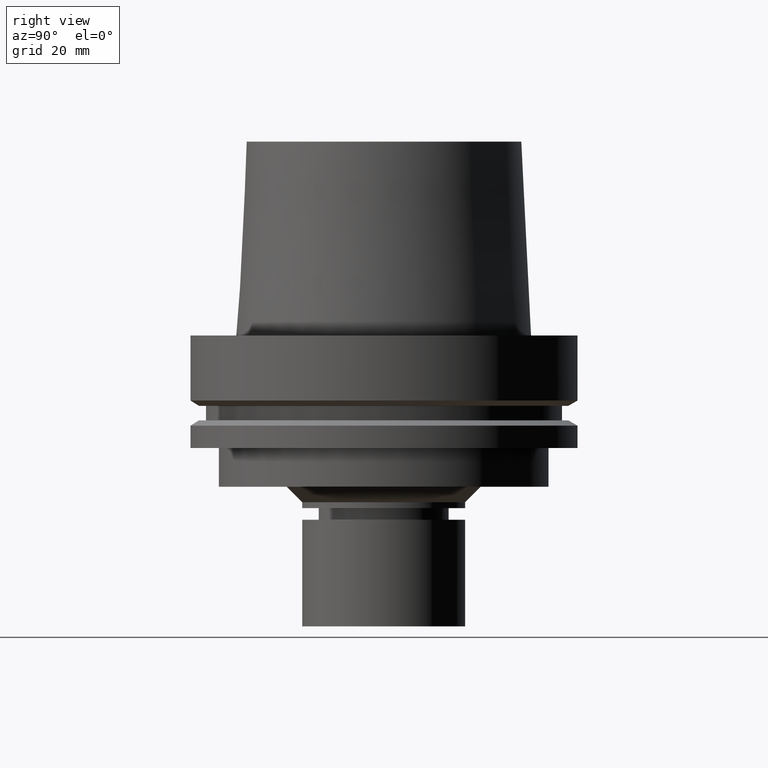
[diagram: clean part render]
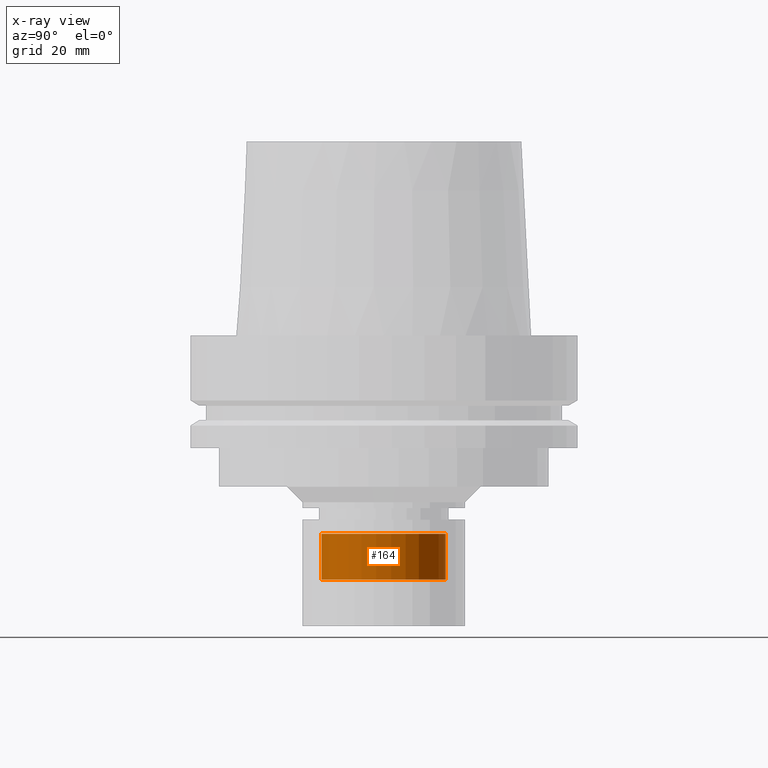
[diagram: x-ray — body ghosted, one internal face saturated and labeled with its STEP entity id]
A machine part, right view, then the same camera in x-ray: the body is ghosted and one INTERNAL B-rep face — a face not visible from any outside direction — is saturated and labeled: STEP entity #164.
In plain terms, the highlighted cylindrical surface (bore or boss wall) has radius 16 mm, axis along (0, 0, -1).
Its self-contained STEP definition (entity closure, byte-faithful):
#104=EDGE_CURVE('Unnamed[1]',#257,#257,#258,.T.);
#151=EDGE_CURVE('Unnamed[1]',#328,#328,#329,.T.);
#164=ADVANCED_FACE('Unnamed[1]',(#348,#349),#350,.T.);
#257=VERTEX_POINT('',#467);
#258=CIRCLE('',#468,16.0);
#328=VERTEX_POINT('',#555);
#329=CIRCLE('',#556,16.0);
#348=FACE_BOUND('',#580,.T.);
#349=FACE_BOUND('',#581,.T.);
#350=CYLINDRICAL_SURFACE('',#582,16.0);
#467=CARTESIAN_POINT('',(3.85119235297769E-015,16.0,-62.8947441116744));
#468=AXIS2_PLACEMENT_3D('',#693,#694,#695);
#555=CARTESIAN_POINT('',(3.13088777704814E-015,16.0,-51.131277674967));
#556=AXIS2_PLACEMENT_3D('',#772,#773,#774);
#580=EDGE_LOOP('',(#794));
#581=EDGE_LOOP('',(#795));
#582=AXIS2_PLACEMENT_3D('',#796,#797,#798);
#693=CARTESIAN_POINT('',(3.85119235297769E-015,7.70238470595539E-015,-62.8947441116744));
#694=DIRECTION('',(6.12323399573677E-017,1.22464679914735E-016,-1.0));
#695=DIRECTION('',(-1.23259516440783E-032,1.0,1.22464679914735E-016));
#772=CARTESIAN_POINT('',(3.13088777704814E-015,6.26177555409629E-015,-51.131277674967));
#773=DIRECTION('',(6.12323399573677E-017,1.22464679914735E-016,-1.0));
#774=DIRECTION('',(-1.23259516440783E-032,1.0,1.22464679914735E-016));
#794=ORIENTED_EDGE('',*,*,#104,.F.);
#795=ORIENTED_EDGE('',*,*,#151,.T.);
#796=CARTESIAN_POINT('',(3.49104006501292E-015,6.98208013002584E-015,-57.0130108933207));
#797=DIRECTION('',(6.12323399573677E-017,1.22464679914735E-016,-1.0));
#798=DIRECTION('',(-1.23259516440783E-032,1.0,1.22464679914735E-016));